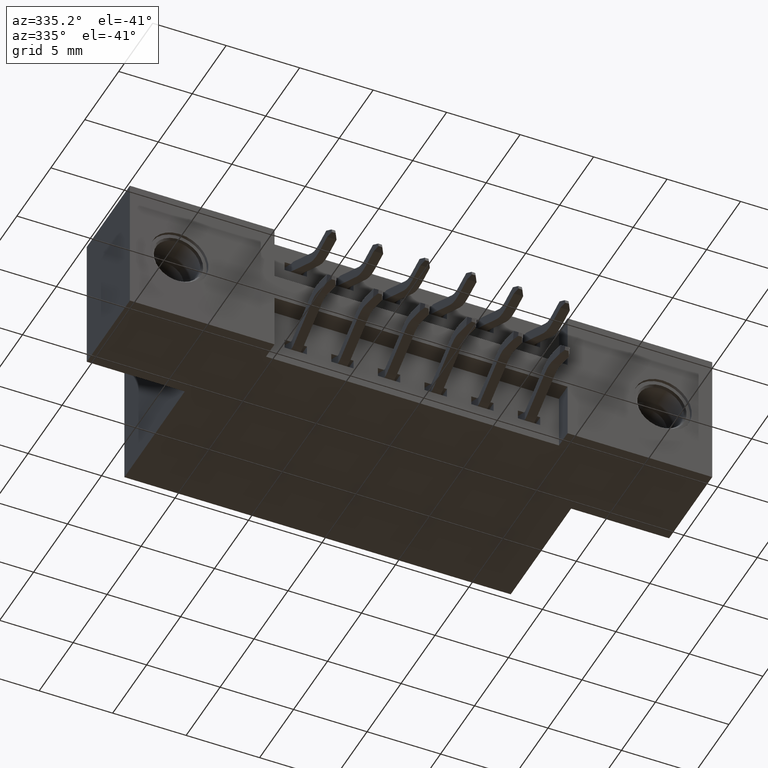
[diagram: clean part render]
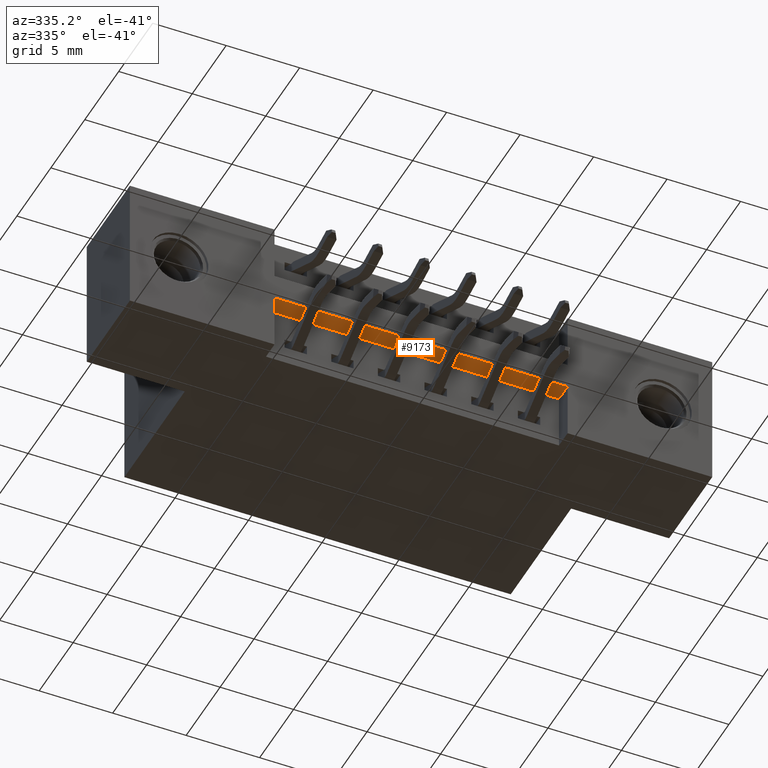
[diagram: same view with one face highlighted and labeled with its STEP entity id]
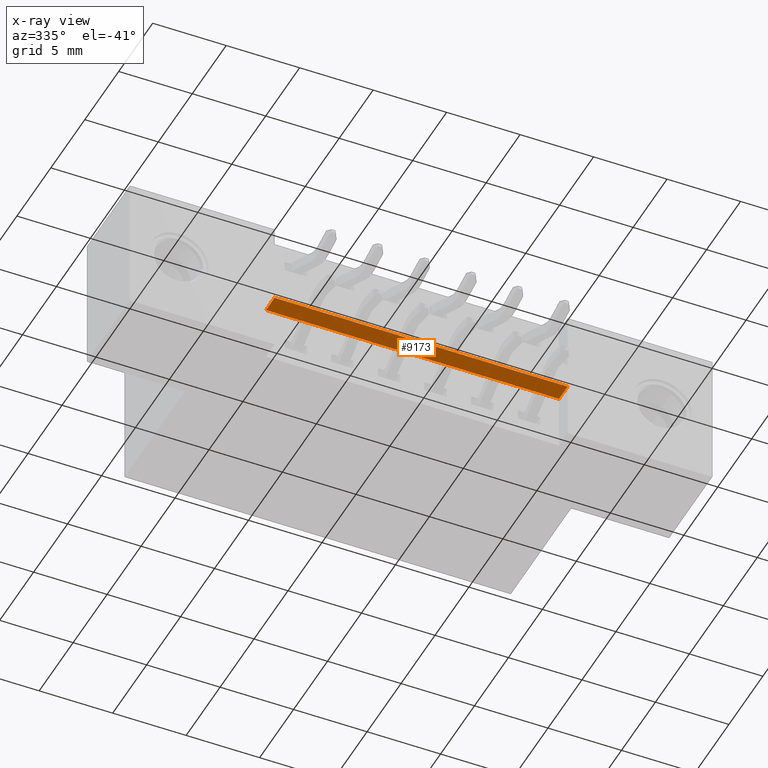
[diagram: x-ray of the same camera — body ghosted, the highlighted face saturated]
A machine part, auxiliary view. The second image highlights one B-rep face of the part: STEP entity #9173.
The next image is the same camera in x-ray: the body ghosted, the highlighted face saturated — about 0% of this face is hidden behind the body in this view.
In plain terms, the highlighted planar face has unit normal (-0, 0, 1).
Its self-contained STEP definition (entity closure, byte-faithful):
#129 = LINE ( 'NONE', #9809, #4066 ) ;
#291 = ORIENTED_EDGE ( 'NONE', *, *, #5440, .T. ) ;
#958 = VECTOR ( 'NONE', #8881, 39.37007874015748100 ) ;
#1115 = CARTESIAN_POINT ( 'NONE',  ( 0.3874999999999997300, 0.0000000000000000000, -0.2200000000000000800 ) ) ;
#1151 = EDGE_LOOP ( 'NONE', ( #291, #9172, #2653, #2817 ) ) ;
#1625 = DIRECTION ( 'NONE',  ( -0.0000000000000000000, -1.000000000000000000, -0.0000000000000000000 ) ) ;
#2457 = AXIS2_PLACEMENT_3D ( 'NONE', #9536, #4782, #4887 ) ;
#2653 = ORIENTED_EDGE ( 'NONE', *, *, #6666, .F. ) ;
#2803 = LINE ( 'NONE', #5569, #958 ) ;
#2817 = ORIENTED_EDGE ( 'NONE', *, *, #3022, .T. ) ;
#2919 = CARTESIAN_POINT ( 'NONE',  ( 1.172500000000000100, 0.0000000000000000000, -0.2200000000000000000 ) ) ;
#3022 = EDGE_CURVE ( 'NONE', #6635, #5340, #5587, .T. ) ;
#3578 = VERTEX_POINT ( 'NONE', #3976 ) ;
#3742 = VECTOR ( 'NONE', #1625, 39.37007874015748100 ) ;
#3904 = VERTEX_POINT ( 'NONE', #1115 ) ;
#3976 = CARTESIAN_POINT ( 'NONE',  ( 0.3874999999999997300, 0.05000000000000000300, -0.2200000000000000800 ) ) ;
#4044 = VECTOR ( 'NONE', #6613, 39.37007874015748100 ) ;
#4066 = VECTOR ( 'NONE', #7463, 39.37007874015748100 ) ;
#4392 = LINE ( 'NONE', #4904, #4044 ) ;
#4504 = CARTESIAN_POINT ( 'NONE',  ( 1.172500000000000100, 0.05000000000000000300, -0.2200000000000000000 ) ) ;
#4782 = DIRECTION ( 'NONE',  ( -8.700152846064527000E-017, 0.0000000000000000000, 1.000000000000000000 ) ) ;
#4793 = CARTESIAN_POINT ( 'NONE',  ( 1.172500000000000100, 0.05000000000000000300, -0.2200000000000000000 ) ) ;
#4887 = DIRECTION ( 'NONE',  ( 1.000000000000000000, 0.0000000000000000000, 8.700152846064527000E-017 ) ) ;
#4904 = CARTESIAN_POINT ( 'NONE',  ( 0.3874999999999997300, 0.05000000000000000300, -0.2200000000000000800 ) ) ;
#5340 = VERTEX_POINT ( 'NONE', #2919 ) ;
#5440 = EDGE_CURVE ( 'NONE', #5340, #3904, #129, .T. ) ;
#5569 = CARTESIAN_POINT ( 'NONE',  ( 0.3874999999999997300, 0.05000000000000000300, -0.2200000000000000800 ) ) ;
#5587 = LINE ( 'NONE', #4793, #3742 ) ;
#6613 = DIRECTION ( 'NONE',  ( -1.000000000000000000, -0.0000000000000000000, -8.700152846064528200E-017 ) ) ;
#6635 = VERTEX_POINT ( 'NONE', #4504 ) ;
#6666 = EDGE_CURVE ( 'NONE', #6635, #3578, #4392, .T. ) ;
#6904 = PLANE ( 'NONE',  #2457 ) ;
#6951 = EDGE_CURVE ( 'NONE', #3578, #3904, #2803, .T. ) ;
#7463 = DIRECTION ( 'NONE',  ( -1.000000000000000000, -0.0000000000000000000, -8.700152846064528200E-017 ) ) ;
#8881 = DIRECTION ( 'NONE',  ( -0.0000000000000000000, -1.000000000000000000, -0.0000000000000000000 ) ) ;
#9172 = ORIENTED_EDGE ( 'NONE', *, *, #6951, .F. ) ;
#9173 = ADVANCED_FACE ( 'NONE', ( #9757 ), #6904, .F. ) ;
#9536 = CARTESIAN_POINT ( 'NONE',  ( 0.3874999999999997300, 0.05000000000000000300, -0.2200000000000000800 ) ) ;
#9757 = FACE_OUTER_BOUND ( 'NONE', #1151, .T. ) ;
#9809 = CARTESIAN_POINT ( 'NONE',  ( 0.3874999999999997300, 0.0000000000000000000, -0.2200000000000000800 ) ) ;